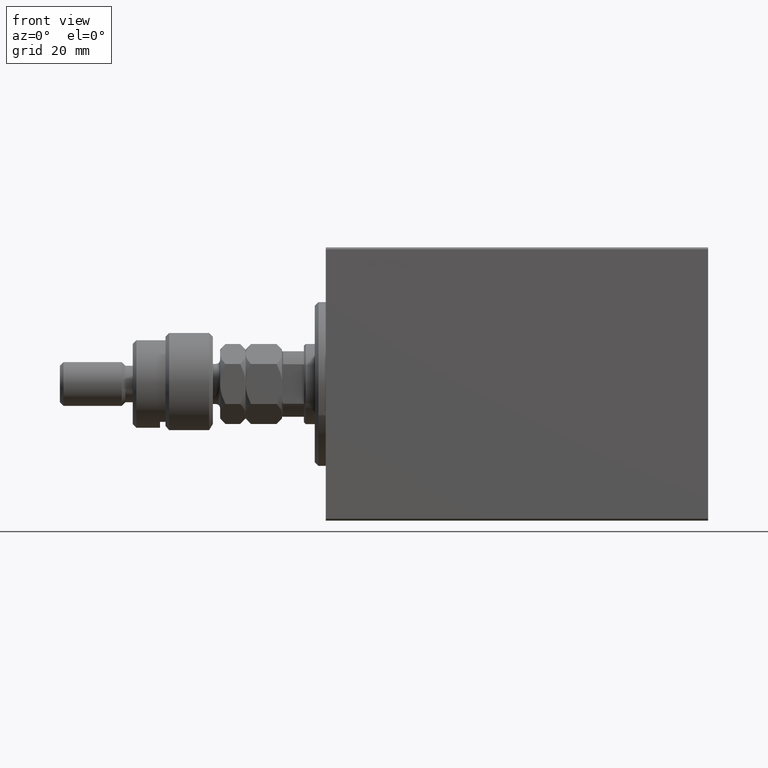
[diagram: clean part render]
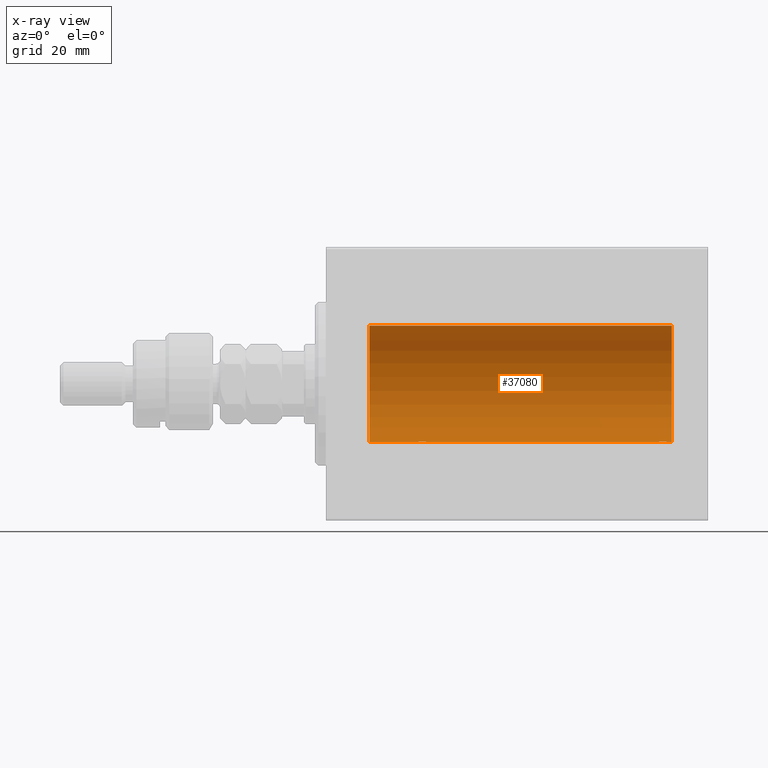
[diagram: x-ray — body ghosted, one internal face saturated and labeled with its STEP entity id]
A machine part, front view, then the same camera in x-ray: the body is ghosted and one INTERNAL B-rep face — a face not visible from any outside direction — is saturated and labeled: STEP entity #37080.
In plain terms, the highlighted cylindrical surface (partial cylindrical patch) has radius 16 mm, axis along (-1, -0, -0).
Its self-contained STEP definition (entity closure, byte-faithful):
#120 = DIRECTION ( 'NONE',  ( -1.000000000000000000, -0.000000000000000000, -0.000000000000000000 ) ) ;
#186 = CARTESIAN_POINT ( 'NONE',  ( 28.50000000000001066, 0.1305944228192323919, -16.00000000000000711 ) ) ;
#246 = VERTEX_POINT ( 'NONE', #14498 ) ;
#425 = CARTESIAN_POINT ( 'NONE',  ( 27.01913097710113121, 1.935876924222081907, -15.88247600692093187 ) ) ;
#1105 = LINE ( 'NONE', #15573, #4663 ) ;
#1397 = CARTESIAN_POINT ( 'NONE',  ( 91.97468243540599531, 1.947280337074155820, -15.88137861827787134 ) ) ;
#1621 = CARTESIAN_POINT ( 'NONE',  ( 92.76251583007899626, 1.987008272775784290, -15.87616016863256974 ) ) ;
#2249 = EDGE_CURVE ( 'NONE', #4676, #24523, #15097, .T. ) ;
#2511 = LINE ( 'NONE', #16277, #23904 ) ;
#3019 = LINE ( 'NONE', #3720, #27629 ) ;
#3026 = ORIENTED_EDGE ( 'NONE', *, *, #23280, .F. ) ;
#3045 = CARTESIAN_POINT ( 'NONE',  ( 27.82075824828932653, 1.507649250492135717, -15.92908549642227101 ) ) ;
#3489 = CARTESIAN_POINT ( 'NONE',  ( 94.29749928605039599, 0.8866640484200093431, -15.97587307151818159 ) ) ;
#3561 = ORIENTED_EDGE ( 'NONE', *, *, #16646, .F. ) ;
#3720 = CARTESIAN_POINT ( 'NONE',  ( 95.00000000000000000, 1.959434878635765131E-15, -16.00000000000000000 ) ) ;
#3743 = CARTESIAN_POINT ( 'NONE',  ( 24.70286585251779954, 0.8874076679346754037, -15.97583181162461408 ) ) ;
#4503 = ORIENTED_EDGE ( 'NONE', *, *, #31057, .F. ) ;
#4629 = CARTESIAN_POINT ( 'NONE',  ( 94.50000000000000000, 1.959434851248285101E-15, -16.00000000000000000 ) ) ;
#4657 = DIRECTION ( 'NONE',  ( -1.000000000000000000, -0.000000000000000000, -0.000000000000000000 ) ) ;
#4663 = VECTOR ( 'NONE', #4657, 1000.000000000000000 ) ;
#4676 = VERTEX_POINT ( 'NONE', #41793 ) ;
#5882 = AXIS2_PLACEMENT_3D ( 'NONE', #23252, #8596, #44787 ) ;
#6605 = VERTEX_POINT ( 'NONE', #7996 ) ;
#6784 = CARTESIAN_POINT ( 'NONE',  ( 28.49999999999999645, 1.959434851239213200E-15, -16.00000000000000000 ) ) ;
#6843 = CARTESIAN_POINT ( 'NONE',  ( 28.00737160312429452, 1.321075116345886924, -15.94564302722882942 ) ) ;
#6867 = ORIENTED_EDGE ( 'NONE', *, *, #35029, .T. ) ;
#7050 = CARTESIAN_POINT ( 'NONE',  ( 94.39783726498899341, 0.6445079780200548836, -15.98747331501412106 ) ) ;
#7284 = DIRECTION ( 'NONE',  ( -1.000000000000000000, -0.000000000000000000, -0.000000000000000000 ) ) ;
#7477 = FACE_OUTER_BOUND ( 'NONE', #19889, .T. ) ;
#7540 = CARTESIAN_POINT ( 'NONE',  ( 24.90948495147900843, 1.219564485341768867, -15.95382484008323054 ) ) ;
#7996 = CARTESIAN_POINT ( 'NONE',  ( 95.00000000000000000, 0.000000000000000000, 16.00000000000000000 ) ) ;
#8596 = DIRECTION ( 'NONE',  ( -1.000000000000000000, 0.000000000000000000, 0.000000000000000000 ) ) ;
#8975 = CARTESIAN_POINT ( 'NONE',  ( 94.00737160312429808, 1.321075116345882261, -15.94564302722883298 ) ) ;
#9669 = CARTESIAN_POINT ( 'NONE',  ( 94.09001528100122869, 1.220169175415118712, -15.95377581882983442 ) ) ;
#10368 = CARTESIAN_POINT ( 'NONE',  ( 94.48690924832123983, 0.2632563459770844716, -15.99834873924246459 ) ) ;
#10388 = CARTESIAN_POINT ( 'NONE',  ( 27.38617757057270197, 1.797743958659261398, -15.89876304682112718 ) ) ;
#10445 = CARTESIAN_POINT ( 'NONE',  ( 11.99999999999999645, 1.959434878635765131E-15, -16.00000000000000000 ) ) ;
#11358 = VERTEX_POINT ( 'NONE', #10445 ) ;
#11774 = EDGE_CURVE ( 'NONE', #6605, #16163, #2511, .T. ) ;
#12291 = CARTESIAN_POINT ( 'NONE',  ( 93.14386968033014114, 1.898058445420880869, -15.88709929148890687 ) ) ;
#12415 = CIRCLE ( 'NONE', #38848, 16.00000000000000000 ) ;
#12992 = CARTESIAN_POINT ( 'NONE',  ( 90.50000000000001421, 0.1322838750249152873, -16.00000000000000000 ) ) ;
#13733 = ORIENTED_EDGE ( 'NONE', *, *, #15615, .T. ) ;
#14199 = CARTESIAN_POINT ( 'NONE',  ( 24.60241129944407135, 0.6452446332038132004, -15.98744362947834929 ) ) ;
#14498 = CARTESIAN_POINT ( 'NONE',  ( 95.00000000000000000, 1.959434878635765131E-15, -16.00000000000000000 ) ) ;
#14585 = CARTESIAN_POINT ( 'NONE',  ( 95.00000000000000000, 0.000000000000000000, 0.000000000000000000 ) ) ;
#14649 = CARTESIAN_POINT ( 'NONE',  ( 28.49999999999999645, 1.959434851239213200E-15, -16.00000000000000000 ) ) ;
#15097 = B_SPLINE_CURVE_WITH_KNOTS ( 'NONE', 3,
 ( #25738, #31903, #39716, #17971, #14199, #3743, #40178, #7540, #21734, #21960, #43492, #25513, #43258, #35467, #28826, #425, #28361, #10388, #18196, #32604, #3045, #6843, #24820, #46349, #39250, #17497, #43726, #21271, #186, #14649 ),
 .UNSPECIFIED., .F., .F.,
 ( 4, 2, 2, 2, 2, 2, 2, 2, 2, 2, 2, 2, 2, 2, 4 ),
 ( 6.061354251518217081E-19, 0.0003911894522871152153, 0.0007823789045742298885, 0.001173568356861344345, 0.001564757809148459126, 0.002347136713722688690, 0.003129515618296918687, 0.003520705070584038889, 0.003911894522871159526, 0.004303083975158279728, 0.004694273427445399931, 0.005085462879732520133, 0.005476652332019640336, 0.005867841784306760539, 0.006259031236593880741 ),
 .UNSPECIFIED. ) ;
#15573 = CARTESIAN_POINT ( 'NONE',  ( 95.00000000000000000, 1.959434878635765131E-15, -16.00000000000000000 ) ) ;
#15615 = EDGE_CURVE ( 'NONE', #22490, #39996, #40126, .T. ) ;
#15860 = CARTESIAN_POINT ( 'NONE',  ( 92.23808537237746918, 1.999903730784148737, -15.87451999516786216 ) ) ;
#16084 = CARTESIAN_POINT ( 'NONE',  ( 93.71967657442274913, 1.590393755195998793, -15.92092783521423982 ) ) ;
#16163 = VERTEX_POINT ( 'NONE', #30786 ) ;
#16277 = CARTESIAN_POINT ( 'NONE',  ( 95.00000000000000000, 0.000000000000000000, 16.00000000000000000 ) ) ;
#16472 = CIRCLE ( 'NONE', #5882, 16.00000000000000000 ) ;
#16646 = EDGE_CURVE ( 'NONE', #246, #39996, #1105, .T. ) ;
#17497 = CARTESIAN_POINT ( 'NONE',  ( 28.39783726498896144, 0.6445079780200569930, -15.98747331501412816 ) ) ;
#17971 = CARTESIAN_POINT ( 'NONE',  ( 24.56388673317936622, 0.5181437283162044771, -15.99211983514074653 ) ) ;
#18196 = CARTESIAN_POINT ( 'NONE',  ( 27.50311247035039486, 1.735145127817748989, -15.90580292899658765 ) ) ;
#19405 = CARTESIAN_POINT ( 'NONE',  ( 91.27043888260214999, 1.598790766515138406, -15.92099550861380841 ) ) ;
#19625 = ORIENTED_EDGE ( 'NONE', *, *, #42909, .F. ) ;
#19636 = CARTESIAN_POINT ( 'NONE',  ( 93.50311247035041617, 1.735145127817740551, -15.90580292899659121 ) ) ;
#19889 = EDGE_LOOP ( 'NONE', ( #3561, #3026, #39787, #6867, #19625, #40237, #4503, #13733 ) ) ;
#20322 = CARTESIAN_POINT ( 'NONE',  ( 90.90948495147900132, 1.219564485341759319, -15.95382484008322344 ) ) ;
#21271 = CARTESIAN_POINT ( 'NONE',  ( 28.48690924832126470, 0.2632563459770842496, -15.99834873924246814 ) ) ;
#21734 = CARTESIAN_POINT ( 'NONE',  ( 24.99389287531753823, 1.322357532253824131, -15.94553003295876970 ) ) ;
#21960 = CARTESIAN_POINT ( 'NONE',  ( 25.27043888260214999, 1.598790766515153061, -15.92099550861380486 ) ) ;
#22490 = VERTEX_POINT ( 'NONE', #26902 ) ;
#23159 = CARTESIAN_POINT ( 'NONE',  ( 90.76431901501740640, 1.002241074716273106, -15.96895041604536125 ) ) ;
#23252 = CARTESIAN_POINT ( 'NONE',  ( 11.99999999999999645, 0.000000000000000000, 0.000000000000000000 ) ) ;
#23280 = EDGE_CURVE ( 'NONE', #6605, #246, #12415, .T. ) ;
#23904 = VECTOR ( 'NONE', #27600, 1000.000000000000000 ) ;
#24512 = DIRECTION ( 'NONE',  ( 0.000000000000000000, 0.000000000000000000, 1.000000000000000000 ) ) ;
#24523 = VERTEX_POINT ( 'NONE', #6784 ) ;
#24820 = CARTESIAN_POINT ( 'NONE',  ( 28.09001528100123579, 1.220169175415121154, -15.95377581882983975 ) ) ;
#25450 = CYLINDRICAL_SURFACE ( 'NONE', #28580, 16.00000000000000000 ) ;
#25513 = CARTESIAN_POINT ( 'NONE',  ( 25.97468243540595623, 1.947280337074166257, -15.88137861827786779 ) ) ;
#25738 = CARTESIAN_POINT ( 'NONE',  ( 24.50000000000000000, -2.103177090749212087E-15, -16.00000000000000000 ) ) ;
#26708 = CARTESIAN_POINT ( 'NONE',  ( 93.38617757057269841, 1.797743958659253183, -15.89876304682112362 ) ) ;
#26902 = CARTESIAN_POINT ( 'NONE',  ( 90.50000000000000000, -8.578174582294765095E-15, -16.00000000000000000 ) ) ;
#27333 = VECTOR ( 'NONE', #42980, 1000.000000000000000 ) ;
#27408 = CARTESIAN_POINT ( 'NONE',  ( 90.56388673317935911, 0.5181437283161969276, -15.99211983514074653 ) ) ;
#27600 = DIRECTION ( 'NONE',  ( -1.000000000000000000, -0.000000000000000000, -0.000000000000000000 ) ) ;
#27629 = VECTOR ( 'NONE', #7284, 1000.000000000000000 ) ;
#28361 = CARTESIAN_POINT ( 'NONE',  ( 27.14386968033013758, 1.898058445420889750, -15.88709929148890510 ) ) ;
#28580 = AXIS2_PLACEMENT_3D ( 'NONE', #14585, #120, #24512 ) ;
#28826 = CARTESIAN_POINT ( 'NONE',  ( 26.76251583007899271, 1.987008272775795614, -15.87616016863256263 ) ) ;
#29050 = CARTESIAN_POINT ( 'NONE',  ( 95.00000000000000000, 0.000000000000000000, 0.000000000000000000 ) ) ;
#30256 = CARTESIAN_POINT ( 'NONE',  ( 92.62985308350499736, 2.000047931387135325, -15.87450182760080253 ) ) ;
#30786 = CARTESIAN_POINT ( 'NONE',  ( 11.99999999999999645, 0.000000000000000000, 16.00000000000000000 ) ) ;
#31057 = EDGE_CURVE ( 'NONE', #22490, #24523, #3019, .T. ) ;
#31903 = CARTESIAN_POINT ( 'NONE',  ( 24.50000000000000000, 0.1322838750249236695, -16.00000000000000000 ) ) ;
#32604 = CARTESIAN_POINT ( 'NONE',  ( 27.71967657442277044, 1.590393755196006786, -15.92092783521423627 ) ) ;
#32824 = DIRECTION ( 'NONE',  ( -1.000000000000000000, 0.000000000000000000, 0.000000000000000000 ) ) ;
#33811 = CARTESIAN_POINT ( 'NONE',  ( 91.49340818440418843, 1.747750603376292178, -15.90457341008071701 ) ) ;
#35029 = EDGE_CURVE ( 'NONE', #16163, #11358, #16472, .T. ) ;
#35446 = CARTESIAN_POINT ( 'NONE',  ( 94.50000000000000000, 1.959434851248285101E-15, -16.00000000000000000 ) ) ;
#35467 = CARTESIAN_POINT ( 'NONE',  ( 26.62985308350499025, 2.000047931387146871, -15.87450182760079898 ) ) ;
#35875 = CARTESIAN_POINT ( 'NONE',  ( 95.00000000000000000, 1.959434878635765131E-15, -16.00000000000000000 ) ) ;
#37080 = ADVANCED_FACE ( 'NONE', ( #7477 ), #25450, .F. ) ;
#37607 = CARTESIAN_POINT ( 'NONE',  ( 90.70286585251780309, 0.8874076679346646346, -15.97583181162461052 ) ) ;
#38296 = CARTESIAN_POINT ( 'NONE',  ( 90.51299475991585552, 0.2623312429553206759, -15.99836091803360105 ) ) ;
#38526 = CARTESIAN_POINT ( 'NONE',  ( 94.23482670674955841, 1.003662148334367510, -15.96885838080210718 ) ) ;
#38848 = AXIS2_PLACEMENT_3D ( 'NONE', #29050, #32824, #39945 ) ;
#39197 = LINE ( 'NONE', #35875, #27333 ) ;
#39250 = CARTESIAN_POINT ( 'NONE',  ( 28.29749928605041021, 0.8866640484200126737, -15.97587307151818514 ) ) ;
#39716 = CARTESIAN_POINT ( 'NONE',  ( 24.51299475991586974, 0.2623312429553280034, -15.99836091803359750 ) ) ;
#39787 = ORIENTED_EDGE ( 'NONE', *, *, #11774, .T. ) ;
#39945 = DIRECTION ( 'NONE',  ( 0.000000000000000000, 0.000000000000000000, 1.000000000000000000 ) ) ;
#39996 = VERTEX_POINT ( 'NONE', #4629 ) ;
#40126 = B_SPLINE_CURVE_WITH_KNOTS ( 'NONE', 3,
 ( #45386, #12992, #38296, #27408, #41152, #37607, #23159, #20322, #41385, #19405, #33811, #1397, #15860, #30256, #1621, #44692, #12291, #26708, #19636, #16084, #44926, #8975, #9669, #38526, #3489, #7050, #42078, #10368, #42778, #35446 ),
 .UNSPECIFIED., .F., .F.,
 ( 4, 2, 2, 2, 2, 2, 2, 2, 2, 2, 2, 2, 2, 2, 4 ),
 ( 2.346188884146258758E-18, 0.0003911894522871310989, 0.0007823789045742598125, 0.001173568356861387930, 0.001564757809148516155, 0.002347136713722742900, 0.003129515618296970728, 0.003520705070584084426, 0.003911894522871197689, 0.004303083975158311821, 0.004694273427445424217, 0.005085462879732538348, 0.005476652332019651612, 0.005867841784306764875, 0.006259031236593878139 ),
 .UNSPECIFIED. ) ;
#40178 = CARTESIAN_POINT ( 'NONE',  ( 24.76431901501739219, 1.002241074716281766, -15.96895041604536658 ) ) ;
#40237 = ORIENTED_EDGE ( 'NONE', *, *, #2249, .T. ) ;
#41152 = CARTESIAN_POINT ( 'NONE',  ( 90.60241129944407135, 0.6452446332038024313, -15.98744362947834929 ) ) ;
#41385 = CARTESIAN_POINT ( 'NONE',  ( 90.99389287531755599, 1.322357532253810364, -15.94553003295878391 ) ) ;
#41793 = CARTESIAN_POINT ( 'NONE',  ( 24.50000000000000000, -2.103177090749212087E-15, -16.00000000000000000 ) ) ;
#42078 = CARTESIAN_POINT ( 'NONE',  ( 94.43569052926127938, 0.5198215460038742020, -15.99206840425678955 ) ) ;
#42778 = CARTESIAN_POINT ( 'NONE',  ( 94.49999999999997158, 0.1305944228192316703, -16.00000000000000000 ) ) ;
#42909 = EDGE_CURVE ( 'NONE', #4676, #11358, #39197, .T. ) ;
#42980 = DIRECTION ( 'NONE',  ( -1.000000000000000000, -0.000000000000000000, -0.000000000000000000 ) ) ;
#43258 = CARTESIAN_POINT ( 'NONE',  ( 26.23808537237744787, 1.999903730784160505, -15.87451999516786216 ) ) ;
#43492 = CARTESIAN_POINT ( 'NONE',  ( 25.49340818440418488, 1.747750603376301726, -15.90457341008072056 ) ) ;
#43726 = CARTESIAN_POINT ( 'NONE',  ( 28.43569052926130425, 0.5198215460038758673, -15.99206840425679665 ) ) ;
#44692 = CARTESIAN_POINT ( 'NONE',  ( 93.01913097710109923, 1.935876924222071249, -15.88247600692093187 ) ) ;
#44787 = DIRECTION ( 'NONE',  ( 0.000000000000000000, 0.000000000000000000, 1.000000000000000000 ) ) ;
#44926 = CARTESIAN_POINT ( 'NONE',  ( 93.82075824828930877, 1.507649250492129500, -15.92908549642227101 ) ) ;
#45386 = CARTESIAN_POINT ( 'NONE',  ( 90.50000000000000000, -8.578174582294765095E-15, -16.00000000000000000 ) ) ;
#46349 = CARTESIAN_POINT ( 'NONE',  ( 28.23482670674955486, 1.003662148334367954, -15.96885838080210718 ) ) ;